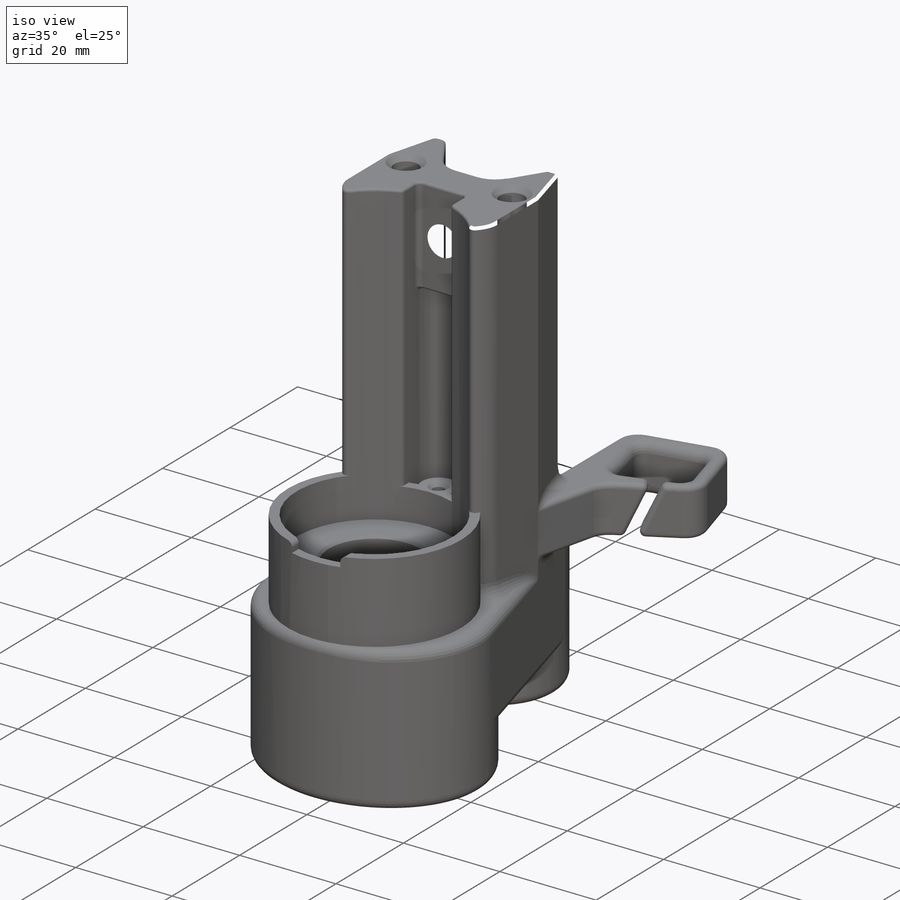
[diagram: iso view]
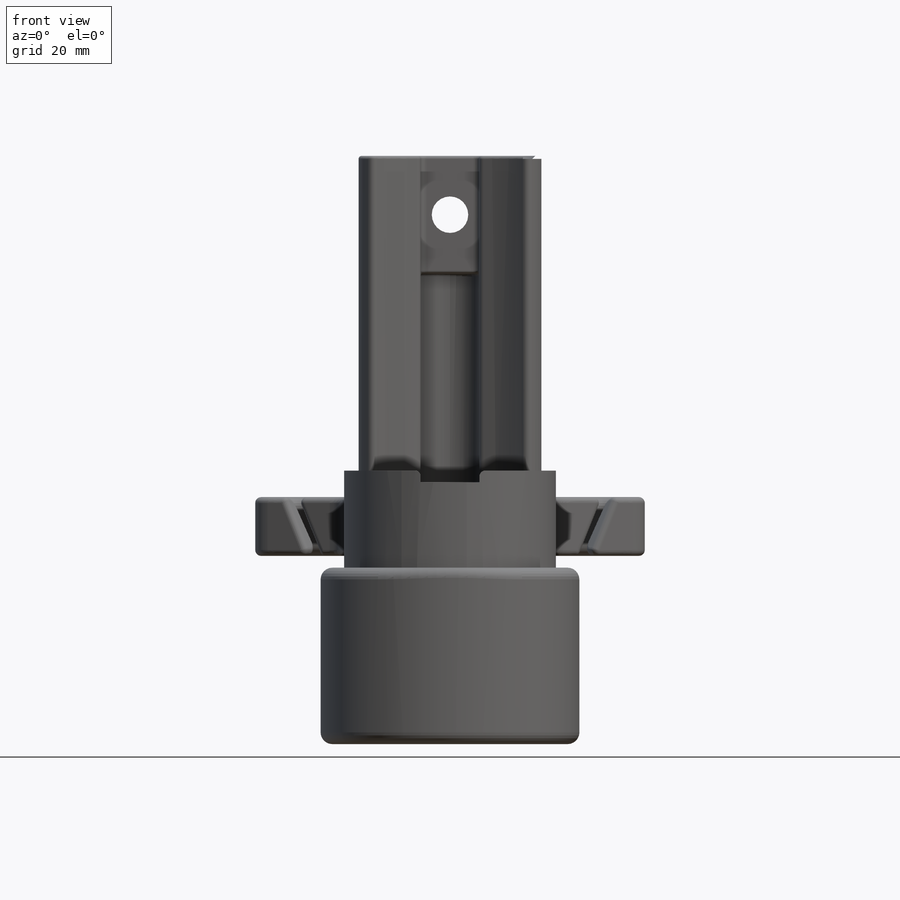
[diagram: front view]
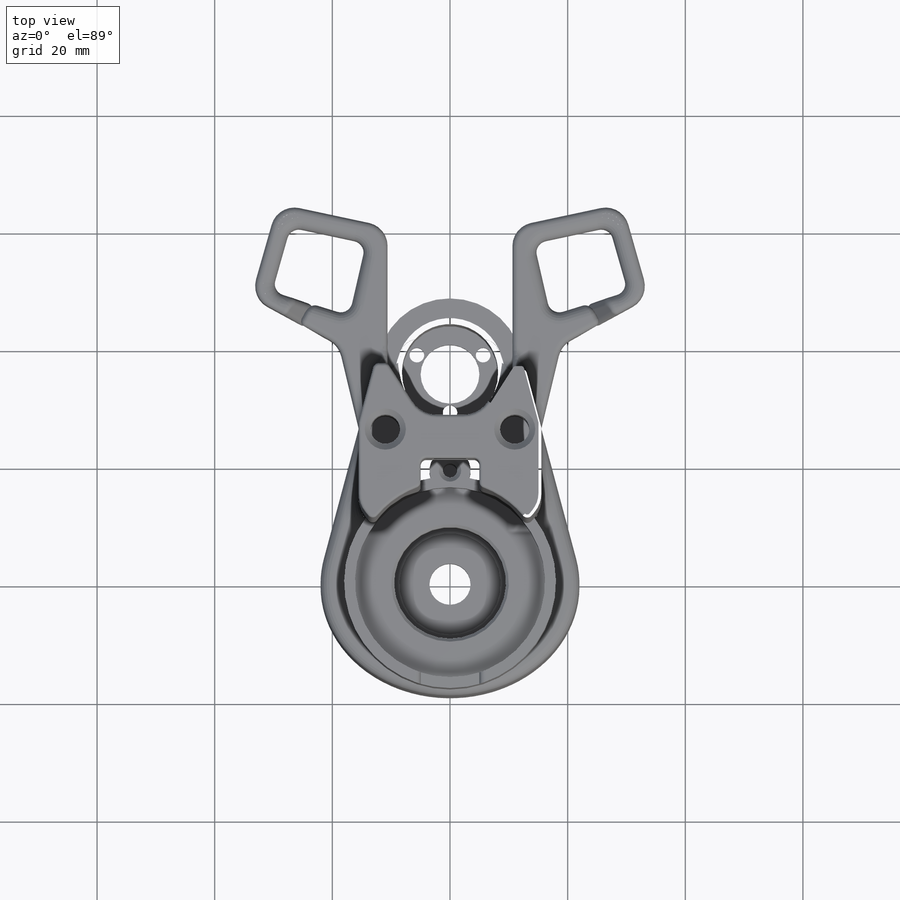
[diagram: top view]
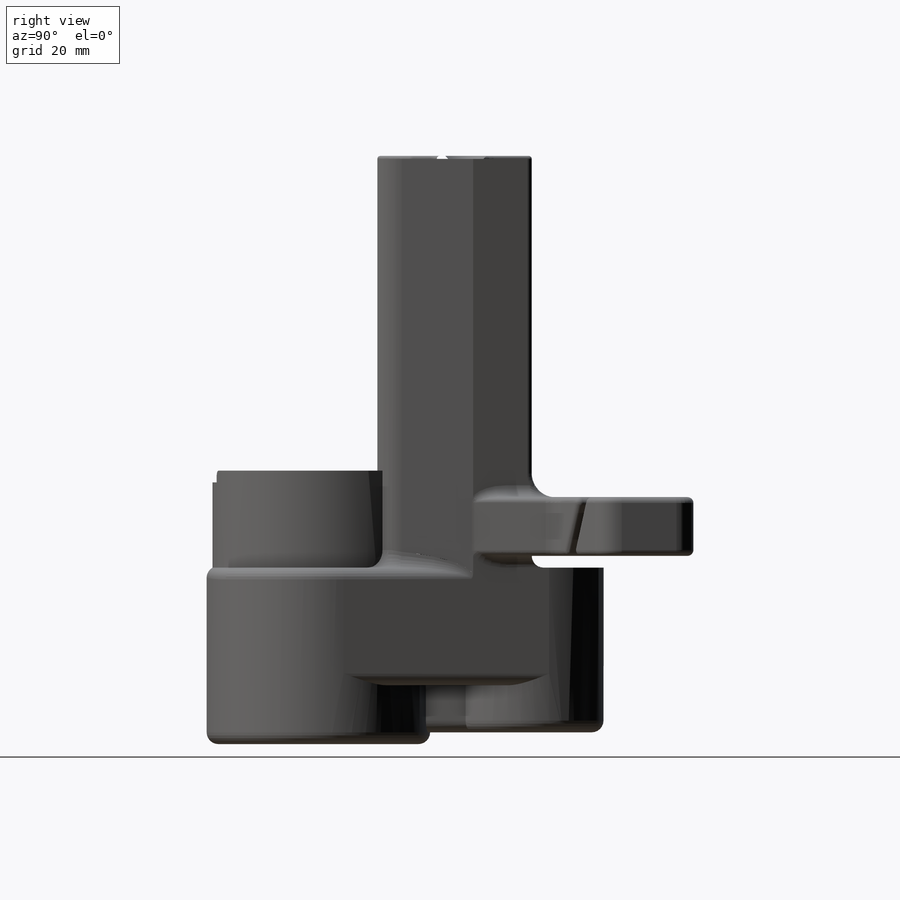
[diagram: right view]
SOLIDWORKS PART (.sldprt)
format: sldprt  version: not decoded by parser v0  size: 1,702,400 bytes
history: native  units: mm
features: sketch x26, fillet x20, cut_extrude x15, extrude x10, chamfer x5, mirror x4, plane x3, material x1 (+9 scaffold rows collapsed)
feature tree (93):
  scaffold x9  (default folders/planes/origin — collapsed)
  material  "Material <nicht festgelegt>"
  plane  "Vorne"
  plane  "Oben"
  plane  "Rechts"
  sketch  "Skizze1"  dims[D1=38.0mm D2=44.0mm]
  extrude  "Aufsatz-Linear austragen1"  Depth=30mm
  sketch  "Skizze2"  dims[D1=24.0mm]
  cut_extrude  "Schnitt-Linear austragen1"  Depth=20mm
  sketch  "Skizze3"  dims[c1.D2=25.0mm c1.D1=36.0mm c1.D3=5.0mm c1.D4=6.0mm c2.D3=12.0mm]
  extrude  "Aufsatz-Linear austragen2"  Depth=2mm
  sketch  "Skizze4"  dims[D1=16.3mm]
  cut_extrude  "Schnitt-Linear austragen2"  Depth=22mm
  sketch  "Skizze5"  dims[D1=17.2mm]
  cut_extrude  "Schnitt-Linear austragen3"  Depth=5mm
  sketch  "Skizze6"  dims[D1=19.0mm]
  cut_extrude  "Schnitt-Linear austragen4"  Depth=1mm
  sketch  "Skizze7"  dims[D1=7.0mm]
  cut_extrude  "Schnitt-Linear austragen5"  Depth=10mm
  sketch  "Skizze8"  dims[D1=7.0mm D2=2.4mm D3=19.0mm]
  extrude  "Aufsatz-Linear austragen4"  Depth=14.5mm
  sketch  "Skizze9"  dims[D1=10.0mm]
  cut_extrude  "Schnitt-Linear austragen6"  Depth=30mm
  sketch  "Skizze10"  dims[D1=36.0mm]
  extrude  "Aufsatz-Linear austragen5"  Depth=8mm
  sketch  "Skizze11"  dims[D1=32.3mm]
  extrude  "Aufsatz-Linear austragen6"  Depth=8.5mm
  sketch  "Skizze12"  dims[D1=10.0mm D2=5.0mm]
  cut_extrude  "Schnitt-Linear austragen7"  Depth=2mm
  sketch  "Skizze13"
  extrude  "Aufsatz-Linear austragen7"  Depth=20mm
  mirror  "Spiegeln1"
  sketch  "Skizze14"
  extrude  "Aufsatz-Linear austragen8"  Depth=70mm
  mirror  "Spiegeln2"
  fillet  "Verrundung1"  Radius=2mm
  sketch  "Skizze15"  dims[D1=5.0mm D2=11.0mm D3=11.0mm]
  cut_extrude  "Schnitt-Linear austragen8"  Depth=60mm
  fillet  "Verrundung3"  Radius=2mm
  chamfer  "Fase1"  Distance=0.5mm Angle=45deg
  chamfer  "Fase2"  Distance=0.5mm Angle=45deg
  sketch  "Skizze16"
  extrude  "Aufsatz-Linear austragen9"  Depth=10mm
  mirror  "Spiegeln3"
  fillet  "Verrundung4"  Radius=2mm
  fillet  "Verrundung5"  Radius=4mm
  fillet  "Verrundung15"  Radius=4mm
  fillet  "Verrundung6"  Radius=1mm
  sketch  "Skizze17"  dims[c1.D1=2.5mm c1.D2=~7.474699mm c2.D2=120.0deg c2.D3=41.25mm c3.D3=120.0deg c3.D4=6.5mm c3.D5=6.5mm c3.D6=6.5mm]
  cut_extrude  "Schnitt-Linear austragen10"  Depth=10mm
  sketch  "Skizze19"  dims[D1=10.0mm]
  sketch  "Skizze20"  dims[D1=5.5mm]
  cut_extrude  "Schnitt-Linear austragen12"  Depth=2mm
  fillet  "Verrundung7"  Radius=0.5mm
  fillet  "Verrundung8"  Radius=0.5mm
  fillet  "Verrundung9"  Radius=5mm
  fillet  "Verrundung10"  Radius=3mm
  fillet  "Verrundung11"  Radius=5mm
  fillet  "Verrundung12"  Radius=3mm
  sketch  "Skizze21"  dims[D1=2.0mm]
  cut_extrude  "Schnitt-Linear austragen13"  Depth=10mm
  mirror  "Spiegeln4"
  fillet  "Verrundung13"  Radius=1mm
  sketch  "Skizze22"
  cut_extrude  "Schnitt-Linear austragen14"  Depth=1mm
  sketch  "Skizze23"
  cut_extrude  "Schnitt-Linear austragen15"  Depth=15mm
  chamfer  "Fase3"  Distance=1mm Angle=45deg
  fillet  "Verrundung14"  Radius=1mm
  chamfer  "Fase4"  Distance=0.7mm Angle=45deg
  sketch  "Skizze24"
  cut_extrude  "Schnitt-Linear austragen16"  [1 undecoded]
  sketch  "Skizze25"
  extrude  "Aufsatz-Linear austragen10"  Depth=22mm
  fillet  "Verrundung16"  Radius=1mm
  fillet  "Verrundung17"  Radius=2mm
  sketch  "Skizze26"
  extrude  "Aufsatz-Linear austragen11"  Depth=20mm
  fillet  "Verrundung21"  Radius=1mm
  fillet  "Verrundung18"  Radius=0.5mm
  fillet  "Verrundung19"  Radius=3mm
  fillet  "Verrundung20"  Radius=1mm
  sketch  "Skizze27"  dims[D1=5.2mm D2=10.0mm]
  cut_extrude  "Schnitt-Linear austragen17"  Depth=20mm
  chamfer  "Fase5"  Distance=0.5mm Angle=45deg
decode coverage: 67 of 80 modeling features carry decoded parameters
note: ~ marks probable driven/reference dimensions
note: 1 parameter value undecoded
note: suppression state not decoded; provenance and decode notes live in map.json
